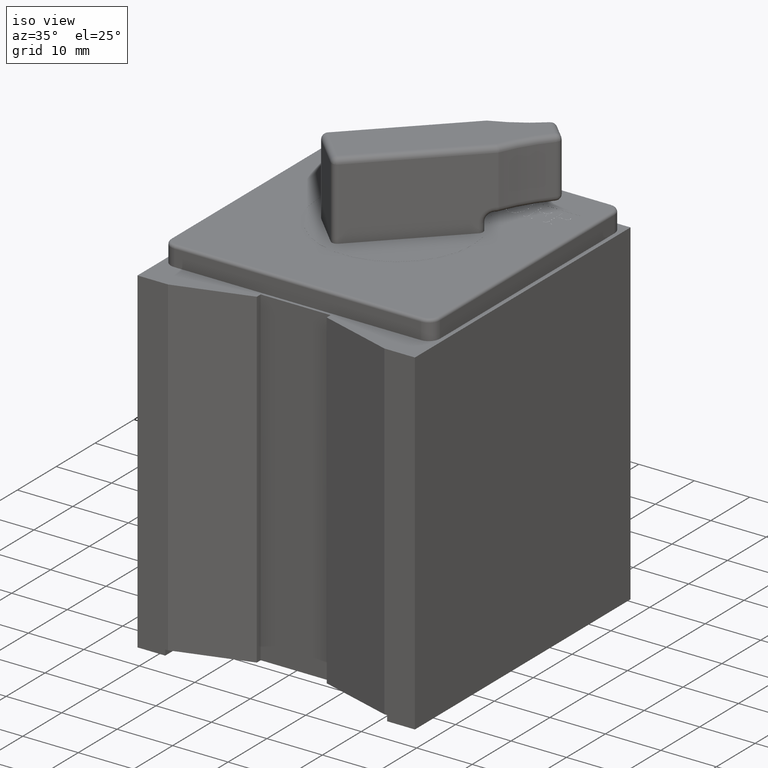
[diagram: clean part render]
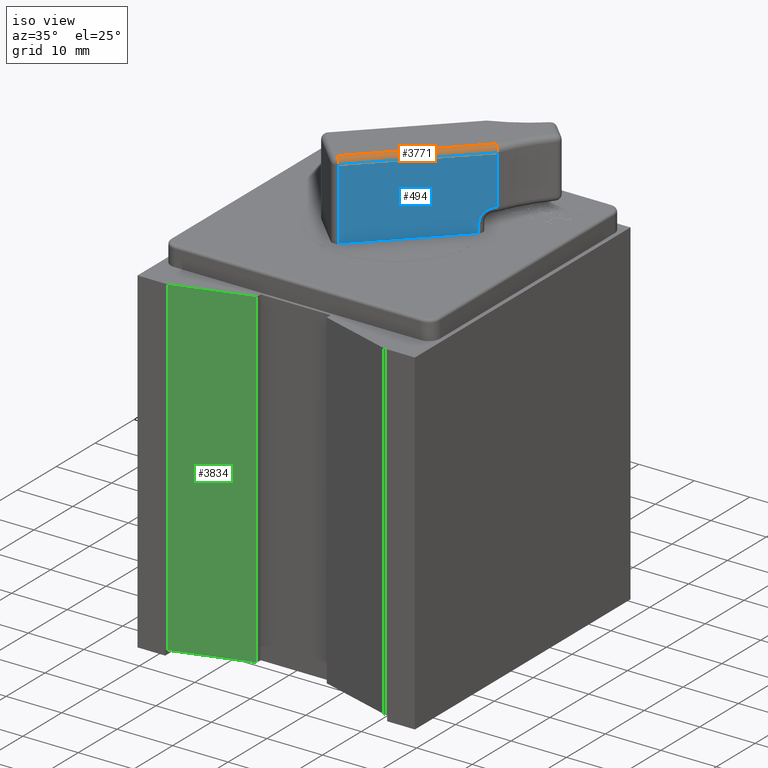
[diagram: same view with three faces highlighted in distinct colors, each labeled with its STEP entity id]
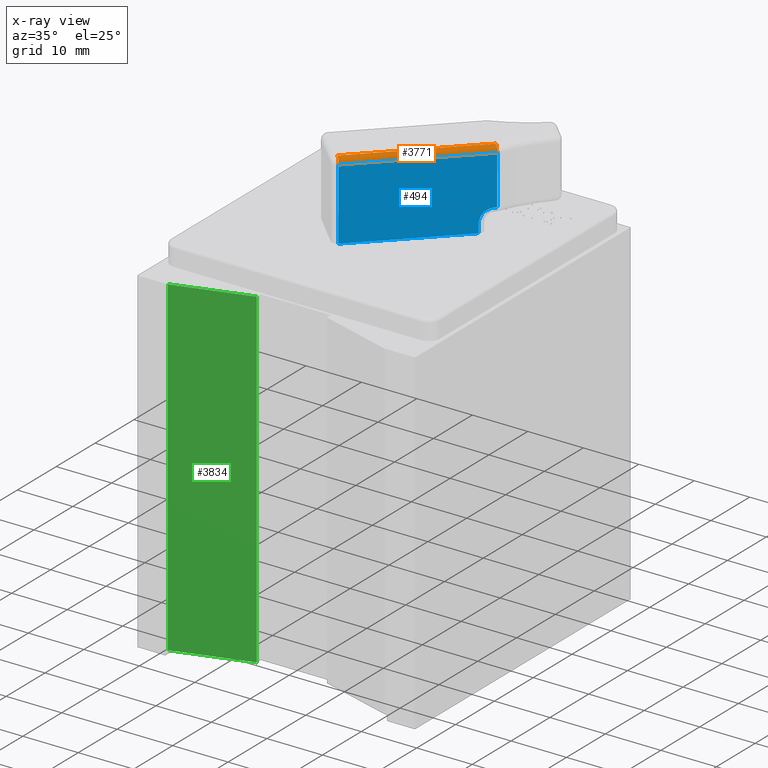
[diagram: x-ray of the same camera — body ghosted, the three highlighted faces saturated]
A machine part, iso view with three faces highlighted in distinct colors.
The next image is the same camera in x-ray (body ghosted, the three faces saturated) — at least one of them is partly hidden behind the body in this view.
Their STEP definitions:

[orange] entity #3771 — the highlighted cylindrical surface (edge-blend (fillet) strip) has radius 1 mm, axis along (-0.7071, -0.7071, 0).
#13 = CARTESIAN_POINT ( 'NONE',  ( -9.657734990062758500, -7.764201076131932700, 124.6999999999761900 ) ) ;
#967 = VERTEX_POINT ( 'NONE', #2578 ) ;
#1144 = VERTEX_POINT ( 'NONE', #13 ) ;
#1329 = CYLINDRICAL_SURFACE ( 'NONE', #1476, 1.000000000000001300 ) ;
#1402 = LINE ( 'NONE', #4628, #4476 ) ;
#1433 = CARTESIAN_POINT ( 'NONE',  ( -10.36484177124930600, -7.057094294945383900, 124.6999999999761900 ) ) ;
#1476 = AXIS2_PLACEMENT_3D ( 'NONE', #3657, #3176, #2229 ) ;
#1627 = EDGE_CURVE ( 'NONE', #967, #3618, #4296, .T. ) ;
#1887 = VECTOR ( 'NONE', #5249, 999.9999999999998900 ) ;
#1918 = CIRCLE ( 'NONE', #5090, 1.000000000000000000 ) ;
#1936 = CARTESIAN_POINT ( 'NONE',  ( 6.460137697356104900, 9.767885173660031800, 125.6999999999761900 ) ) ;
#2229 = DIRECTION ( 'NONE',  ( 0.7071067811865475700, -0.7071067811865475700, 0.0000000000000000000 ) ) ;
#2261 = DIRECTION ( 'NONE',  ( -0.7071067811865398000, -0.7071067811865554600, 0.0000000000000000000 ) ) ;
#2272 = CIRCLE ( 'NONE', #2292, 1.000000000000000000 ) ;
#2292 = AXIS2_PLACEMENT_3D ( 'NONE', #1433, #5051, #5515 ) ;
#2578 = CARTESIAN_POINT ( 'NONE',  ( -10.36484177124930300, -7.057094294945387400, 125.6999999999761900 ) ) ;
#2581 = ORIENTED_EDGE ( 'NONE', *, *, #3464, .F. ) ;
#2977 = CARTESIAN_POINT ( 'NONE',  ( 7.167244478542658100, 9.060778392473492800, 124.6999999999761900 ) ) ;
#3027 = EDGE_CURVE ( 'NONE', #967, #1144, #2272, .T. ) ;
#3176 = DIRECTION ( 'NONE',  ( -0.7071067811865473500, -0.7071067811865476800, 0.0000000000000000000 ) ) ;
#3464 = EDGE_CURVE ( 'NONE', #4926, #1144, #1402, .T. ) ;
#3489 = ORIENTED_EDGE ( 'NONE', *, *, #3885, .T. ) ;
#3618 = VERTEX_POINT ( 'NONE', #1936 ) ;
#3657 = CARTESIAN_POINT ( 'NONE',  ( 14.31098947410541200, 17.61873695040935000, 124.6999999999761900 ) ) ;
#3692 = ORIENTED_EDGE ( 'NONE', *, *, #1627, .F. ) ;
#3760 = DIRECTION ( 'NONE',  ( -0.7071067811865554600, 0.7071067811865398000, 0.0000000000000000000 ) ) ;
#3771 = ADVANCED_FACE ( 'NONE', ( #4601 ), #1329, .T. ) ;
#3779 = ORIENTED_EDGE ( 'NONE', *, *, #3027, .T. ) ;
#3885 = EDGE_CURVE ( 'NONE', #4926, #3618, #1918, .T. ) ;
#4045 = EDGE_LOOP ( 'NONE', ( #3779, #2581, #3489, #3692 ) ) ;
#4296 = LINE ( 'NONE', #4884, #1887 ) ;
#4476 = VECTOR ( 'NONE', #5995, 999.9999999999998900 ) ;
#4601 = FACE_OUTER_BOUND ( 'NONE', #4045, .T. ) ;
#4628 = CARTESIAN_POINT ( 'NONE',  ( -10.36484177124931000, -8.471307857318484100, 124.6999999999761900 ) ) ;
#4646 = CARTESIAN_POINT ( 'NONE',  ( 6.460137697356104900, 9.767885173660031800, 124.6999999999761900 ) ) ;
#4884 = CARTESIAN_POINT ( 'NONE',  ( 6.605720977225943500, 9.913468453529871400, 125.6999999999761900 ) ) ;
#4926 = VERTEX_POINT ( 'NONE', #2977 ) ;
#5051 = DIRECTION ( 'NONE',  ( 0.7071067811865480200, 0.7071067811865470200, 9.199760500100212300E-016 ) ) ;
#5090 = AXIS2_PLACEMENT_3D ( 'NONE', #4646, #2261, #3760 ) ;
#5249 = DIRECTION ( 'NONE',  ( 0.7071067811865473500, 0.7071067811865477900, -0.0000000000000000000 ) ) ;
#5515 = DIRECTION ( 'NONE',  ( 0.7071067811865468000, -0.7071067811865484600, 0.0000000000000000000 ) ) ;
#5995 = DIRECTION ( 'NONE',  ( -0.7071067811865473500, -0.7071067811865477900, -0.0000000000000000000 ) ) ;

[blue] entity #494 — the highlighted planar face has unit normal (-0.7071, 0.7071, 0).
#13 = CARTESIAN_POINT ( 'NONE',  ( -9.657734990062758500, -7.764201076131932700, 124.6999999999761900 ) ) ;
#318 = VECTOR ( 'NONE', #1666, 999.9999999999998900 ) ;
#494 = ADVANCED_FACE ( 'NONE', ( #5552 ), #1285, .F. ) ;
#555 = VECTOR ( 'NONE', #5570, 1000.000000000000000 ) ;
#615 = VERTEX_POINT ( 'NONE', #3210 ) ;
#760 = EDGE_CURVE ( 'NONE', #1144, #2213, #5577, .T. ) ;
#791 = DIRECTION ( 'NONE',  ( -0.7071067811865477900, 0.7071067811865473500, 0.0000000000000000000 ) ) ;
#796 = DIRECTION ( 'NONE',  ( -0.7071067811865474600, -0.7071067811865477900, 0.0000000000000000000 ) ) ;
#1144 = VERTEX_POINT ( 'NONE', #13 ) ;
#1238 = CARTESIAN_POINT ( 'NONE',  ( -10.36484177124930600, -8.471307857318480600, 111.7999999999761900 ) ) ;
#1285 = PLANE ( 'NONE',  #1869 ) ;
#1402 = LINE ( 'NONE', #4628, #4476 ) ;
#1418 = ORIENTED_EDGE ( 'NONE', *, *, #3860, .T. ) ;
#1436 = LINE ( 'NONE', #2288, #2455 ) ;
#1462 = VERTEX_POINT ( 'NONE', #2043 ) ;
#1666 = DIRECTION ( 'NONE',  ( 0.7071067811865473500, 0.7071067811865477900, -0.0000000000000000000 ) ) ;
#1755 = DIRECTION ( 'NONE',  ( -0.7071067811865473500, -0.7071067811865477900, 0.0000000000000000000 ) ) ;
#1758 = CARTESIAN_POINT ( 'NONE',  ( 6.959274367821016000, 8.852808281751851600, 113.2999999999761900 ) ) ;
#1780 = VECTOR ( 'NONE', #4504, 999.9999999999998900 ) ;
#1869 = AXIS2_PLACEMENT_3D ( 'NONE', #2621, #791, #1755 ) ;
#2043 = CARTESIAN_POINT ( 'NONE',  ( 5.191507414854647200, 7.085041328785481900, 113.2999999999761900 ) ) ;
#2155 = CARTESIAN_POINT ( 'NONE',  ( 5.191507414854645400, 7.085041328785474800, 111.7999999999761900 ) ) ;
#2213 = VERTEX_POINT ( 'NONE', #5035 ) ;
#2288 = CARTESIAN_POINT ( 'NONE',  ( 7.167244478542659900, 9.060778392473492800, 125.6999999999761900 ) ) ;
#2333 = CARTESIAN_POINT ( 'NONE',  ( 5.191507414854645400, 7.085041328785474800, 125.6999999999761900 ) ) ;
#2346 = VERTEX_POINT ( 'NONE', #4209 ) ;
#2371 = EDGE_CURVE ( 'NONE', #615, #4926, #1436, .T. ) ;
#2455 = VECTOR ( 'NONE', #5153, 1000.000000000000000 ) ;
#2487 = EDGE_CURVE ( 'NONE', #4669, #1462, #3768, .T. ) ;
#2621 = CARTESIAN_POINT ( 'NONE',  ( -10.36484177124930600, -8.471307857318480600, 125.6999999999761900 ) ) ;
#2633 = ORIENTED_EDGE ( 'NONE', *, *, #4376, .T. ) ;
#2853 = EDGE_LOOP ( 'NONE', ( #5163, #5418, #1418, #2633, #4688, #4524, #5560 ) ) ;
#2977 = CARTESIAN_POINT ( 'NONE',  ( 7.167244478542658100, 9.060778392473492800, 124.6999999999761900 ) ) ;
#3210 = CARTESIAN_POINT ( 'NONE',  ( 7.167244478542659900, 9.060778392473492800, 115.7999999999761900 ) ) ;
#3382 = CIRCLE ( 'NONE', #3869, 2.500000000000002700 ) ;
#3384 = LINE ( 'NONE', #1238, #1780 ) ;
#3464 = EDGE_CURVE ( 'NONE', #4926, #1144, #1402, .T. ) ;
#3754 = DIRECTION ( 'NONE',  ( 0.0000000000000000000, 0.0000000000000000000, -1.000000000000000000 ) ) ;
#3768 = LINE ( 'NONE', #2333, #555 ) ;
#3860 = EDGE_CURVE ( 'NONE', #1462, #2346, #3382, .T. ) ;
#3869 = AXIS2_PLACEMENT_3D ( 'NONE', #1758, #5445, #796 ) ;
#4209 = CARTESIAN_POINT ( 'NONE',  ( 6.959274367821014300, 8.852808281751851600, 115.7999999999761900 ) ) ;
#4326 = LINE ( 'NONE', #5356, #318 ) ;
#4376 = EDGE_CURVE ( 'NONE', #2346, #615, #4326, .T. ) ;
#4476 = VECTOR ( 'NONE', #5995, 999.9999999999998900 ) ;
#4504 = DIRECTION ( 'NONE',  ( 0.7071067811865473500, 0.7071067811865477900, 0.0000000000000000000 ) ) ;
#4524 = ORIENTED_EDGE ( 'NONE', *, *, #3464, .T. ) ;
#4570 = EDGE_CURVE ( 'NONE', #2213, #4669, #3384, .T. ) ;
#4628 = CARTESIAN_POINT ( 'NONE',  ( -10.36484177124931000, -8.471307857318484100, 124.6999999999761900 ) ) ;
#4669 = VERTEX_POINT ( 'NONE', #2155 ) ;
#4688 = ORIENTED_EDGE ( 'NONE', *, *, #2371, .T. ) ;
#4926 = VERTEX_POINT ( 'NONE', #2977 ) ;
#5035 = CARTESIAN_POINT ( 'NONE',  ( -9.657734990062758500, -7.764201076131932700, 111.7999999999761900 ) ) ;
#5153 = DIRECTION ( 'NONE',  ( -0.0000000000000000000, -0.0000000000000000000, 1.000000000000000000 ) ) ;
#5163 = ORIENTED_EDGE ( 'NONE', *, *, #4570, .T. ) ;
#5288 = VECTOR ( 'NONE', #3754, 1000.000000000000000 ) ;
#5356 = CARTESIAN_POINT ( 'NONE',  ( -10.36484177124930600, -8.471307857318480600, 115.7999999999761900 ) ) ;
#5418 = ORIENTED_EDGE ( 'NONE', *, *, #2487, .T. ) ;
#5445 = DIRECTION ( 'NONE',  ( -0.7071067811865476800, 0.7071067811865473500, 0.0000000000000000000 ) ) ;
#5552 = FACE_OUTER_BOUND ( 'NONE', #2853, .T. ) ;
#5560 = ORIENTED_EDGE ( 'NONE', *, *, #760, .T. ) ;
#5570 = DIRECTION ( 'NONE',  ( 0.0000000000000000000, 0.0000000000000000000, 1.000000000000000000 ) ) ;
#5577 = LINE ( 'NONE', #5666, #5288 ) ;
#5666 = CARTESIAN_POINT ( 'NONE',  ( -9.657734990062758500, -7.764201076131932700, 125.6999999999761900 ) ) ;
#5995 = DIRECTION ( 'NONE',  ( -0.7071067811865473500, -0.7071067811865477900, -0.0000000000000000000 ) ) ;

[green] entity #3834 — the highlighted planar face has unit normal (0.29, -0.957, 0).
#678 = CARTESIAN_POINT ( 'NONE',  ( -26.42525369344762300, -27.71065196765026400, 108.2999999999761900 ) ) ;
#820 = DIRECTION ( 'NONE',  ( 0.0000000000000000000, 0.0000000000000000000, 1.000000000000000000 ) ) ;
#835 = DIRECTION ( 'NONE',  ( 0.9570244044334739200, 0.2900073952828692800, 0.0000000000000000000 ) ) ;
#998 = LINE ( 'NONE', #678, #3694 ) ;
#1320 = DIRECTION ( 'NONE',  ( 0.2900073952828693400, -0.9570244044334740300, 0.0000000000000000000 ) ) ;
#1502 = CARTESIAN_POINT ( 'NONE',  ( -26.42525369344762300, -27.71065196765026400, 48.69999999997617800 ) ) ;
#1634 = CARTESIAN_POINT ( 'NONE',  ( -26.42525369344762300, -27.71065196765026400, 108.2999999999761900 ) ) ;
#1676 = VERTEX_POINT ( 'NONE', #2451 ) ;
#1687 = CARTESIAN_POINT ( 'NONE',  ( -26.42525369344762300, -27.71065196765026400, 47.69999999997618500 ) ) ;
#1957 = VECTOR ( 'NONE', #4930, 1000.000000000000000 ) ;
#2100 = EDGE_CURVE ( 'NONE', #1676, #5932, #4938, .T. ) ;
#2247 = PLANE ( 'NONE',  #4299 ) ;
#2451 = CARTESIAN_POINT ( 'NONE',  ( -26.42525369344762300, -27.71065196765026400, 48.69999999997617800 ) ) ;
#2567 = ORIENTED_EDGE ( 'NONE', *, *, #2100, .F. ) ;
#2572 = DIRECTION ( 'NONE',  ( 0.9570244044334739200, 0.2900073952828693400, 0.0000000000000000000 ) ) ;
#2575 = FACE_OUTER_BOUND ( 'NONE', #5714, .T. ) ;
#2589 = ORIENTED_EDGE ( 'NONE', *, *, #2623, .F. ) ;
#2623 = EDGE_CURVE ( 'NONE', #5932, #4396, #998, .T. ) ;
#2711 = LINE ( 'NONE', #3586, #4536 ) ;
#3066 = CARTESIAN_POINT ( 'NONE',  ( -13.22525369344755900, -23.71065196765026800, 48.69999999997617800 ) ) ;
#3586 = CARTESIAN_POINT ( 'NONE',  ( -13.22525369344755900, -23.71065196765026800, 47.69999999997618500 ) ) ;
#3694 = VECTOR ( 'NONE', #2572, 1000.000000000000100 ) ;
#3810 = VECTOR ( 'NONE', #5755, 1000.000000000000200 ) ;
#3834 = ADVANCED_FACE ( 'NONE', ( #2575 ), #2247, .T. ) ;
#3978 = LINE ( 'NONE', #1502, #3810 ) ;
#4007 = CARTESIAN_POINT ( 'NONE',  ( -13.22525369344755900, -23.71065196765026800, 108.2999999999761900 ) ) ;
#4086 = EDGE_CURVE ( 'NONE', #4332, #1676, #3978, .T. ) ;
#4116 = CARTESIAN_POINT ( 'NONE',  ( -26.42525369344762300, -27.71065196765026400, 47.69999999997618500 ) ) ;
#4299 = AXIS2_PLACEMENT_3D ( 'NONE', #4116, #1320, #835 ) ;
#4332 = VERTEX_POINT ( 'NONE', #3066 ) ;
#4396 = VERTEX_POINT ( 'NONE', #4007 ) ;
#4536 = VECTOR ( 'NONE', #820, 1000.000000000000000 ) ;
#4609 = EDGE_CURVE ( 'NONE', #4332, #4396, #2711, .T. ) ;
#4930 = DIRECTION ( 'NONE',  ( 0.0000000000000000000, 0.0000000000000000000, 1.000000000000000000 ) ) ;
#4938 = LINE ( 'NONE', #1687, #1957 ) ;
#5714 = EDGE_LOOP ( 'NONE', ( #5799, #5927, #2589, #2567 ) ) ;
#5755 = DIRECTION ( 'NONE',  ( -0.9570244044334739200, -0.2900073952828692800, 0.0000000000000000000 ) ) ;
#5799 = ORIENTED_EDGE ( 'NONE', *, *, #4086, .F. ) ;
#5927 = ORIENTED_EDGE ( 'NONE', *, *, #4609, .T. ) ;
#5932 = VERTEX_POINT ( 'NONE', #1634 ) ;